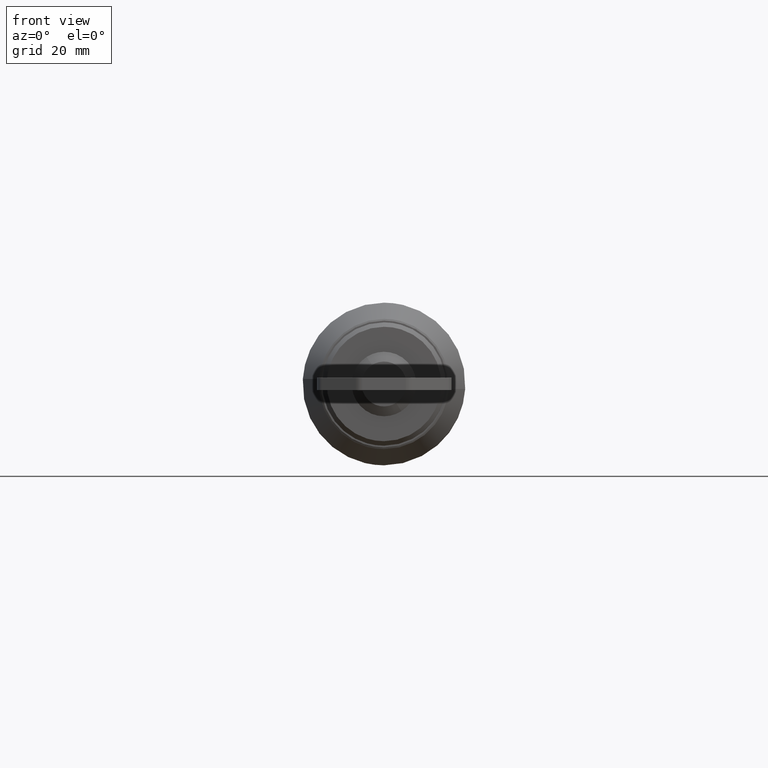
[diagram: clean part render]
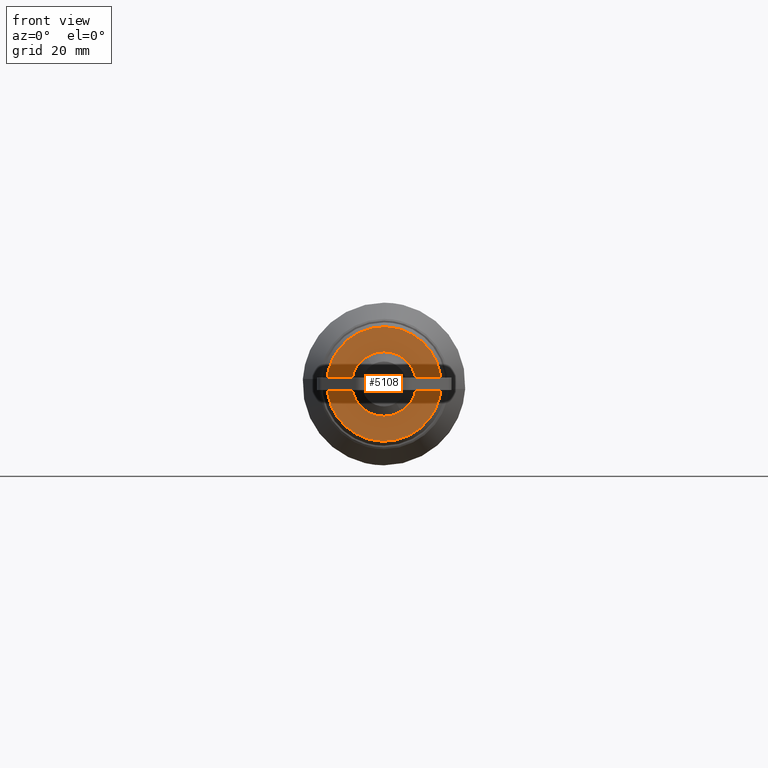
[diagram: same view with one face highlighted and labeled with its STEP entity id]
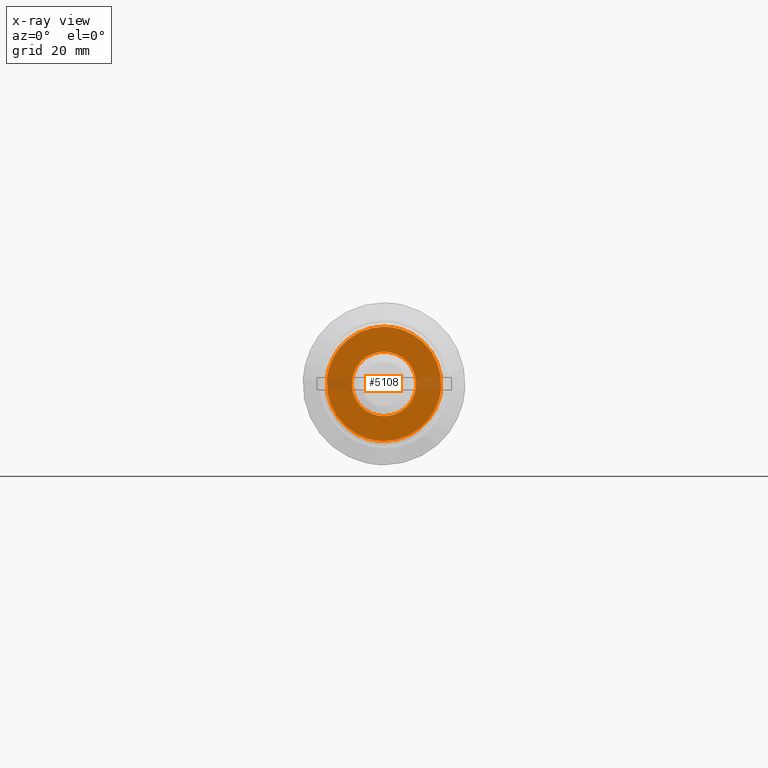
[diagram: x-ray of the same camera — body ghosted, the highlighted face saturated]
A machine part, front view. The second image highlights one B-rep face of the part: STEP entity #5108.
The next image is the same camera in x-ray: the body ghosted, the highlighted face saturated — about 9% of this face is hidden behind the body in this view.
In plain terms, the highlighted face is a freeform B-spline surface patch.
Its self-contained STEP definition (entity closure, byte-faithful):
#4920=CARTESIAN_POINT('',(-10.168556804114660,-5.899999999883600,0.800282777313632));
#4921=VERTEX_POINT('',#4920);
#4927=CARTESIAN_POINT('',(-3.612589E-016,-5.900000000000000,10.199999999990039));
#4928=VERTEX_POINT('',#4927);
#4929=CARTESIAN_POINT('',(-3.612589E-016,-5.900000000000000,10.199999999990039));
#4930=CARTESIAN_POINT('',(-9.428783014142846,-5.899999999941799,10.199999999994608));
#4931=CARTESIAN_POINT('',(-10.168556804114655,-5.899999999883600,0.800282777313632));
#4939=(BOUNDED_CURVE()B_SPLINE_CURVE(2,(#4929,#4930,#4931),.UNSPECIFIED.,.F.,.U.)B_SPLINE_CURVE_WITH_KNOTS((3,3),(0.0,0.236331300617910),.UNSPECIFIED.)CURVE()GEOMETRIC_REPRESENTATION_ITEM()RATIONAL_B_SPLINE_CURVE((1.0,0.723120658622602,0.969723356140811))REPRESENTATION_ITEM(''));
#4940=EDGE_CURVE('',#4928,#4921,#4939,.T.);
#4942=CARTESIAN_POINT('',(10.168556804114660,-5.899999999883602,-0.800282777313632));
#4943=VERTEX_POINT('',#4942);
#4944=CARTESIAN_POINT('',(10.168556804114658,-5.899999999883603,-0.800282777313632));
#4945=CARTESIAN_POINT('',(10.200000000103973,-5.899999999885715,-0.400759091929481));
#4946=CARTESIAN_POINT('',(10.200000000101690,-5.899999999888001,-8.786367E-012));
#4947=CARTESIAN_POINT('',(10.200000000043673,-5.899999999946202,10.199999999985819));
#4948=CARTESIAN_POINT('',(-3.612589E-016,-5.900000000000000,10.199999999990039));
#4956=(BOUNDED_CURVE()B_SPLINE_CURVE(2,(#4944,#4945,#4946,#4947,#4948),.UNSPECIFIED.,.F.,.U.)B_SPLINE_CURVE_WITH_KNOTS((3,2,3),(0.736331300617910,0.750000000000000,1.0),.UNSPECIFIED.)CURVE()GEOMETRIC_REPRESENTATION_ITEM()RATIONAL_B_SPLINE_CURVE((0.969723356140811,0.983986122563945,1.0,0.707106781186547,1.0))REPRESENTATION_ITEM(''));
#4957=EDGE_CURVE('',#4943,#4928,#4956,.T.);
#4993=CARTESIAN_POINT('',(-3.612589E-016,-5.900000000000000,-10.199999999990039));
#4994=VERTEX_POINT('',#4993);
#4995=CARTESIAN_POINT('',(-3.612589E-016,-5.900000000000000,-10.199999999990039));
#4996=CARTESIAN_POINT('',(9.428783014142848,-5.899999999941800,-10.199999999994606));
#4997=CARTESIAN_POINT('',(10.168556804114658,-5.899999999883603,-0.800282777313632));
#5005=(BOUNDED_CURVE()B_SPLINE_CURVE(2,(#4995,#4996,#4997),.UNSPECIFIED.,.F.,.U.)B_SPLINE_CURVE_WITH_KNOTS((3,3),(0.500000000000000,0.736331300617910),.UNSPECIFIED.)CURVE()GEOMETRIC_REPRESENTATION_ITEM()RATIONAL_B_SPLINE_CURVE((1.0,0.723120658622602,0.969723356140811))REPRESENTATION_ITEM(''));
#5006=EDGE_CURVE('',#4994,#4943,#5005,.T.);
#5008=CARTESIAN_POINT('',(-10.168556804114655,-5.899999999883600,0.800282777313632));
#5009=CARTESIAN_POINT('',(-10.200000000103973,-5.899999999885713,0.400759091929482));
#5010=CARTESIAN_POINT('',(-10.200000000101690,-5.899999999887999,8.786901E-012));
#5011=CARTESIAN_POINT('',(-10.200000000043671,-5.899999999946199,-10.199999999985819));
#5012=CARTESIAN_POINT('',(-3.612589E-016,-5.900000000000000,-10.199999999990039));
#5020=(BOUNDED_CURVE()B_SPLINE_CURVE(2,(#5008,#5009,#5010,#5011,#5012),.UNSPECIFIED.,.F.,.U.)B_SPLINE_CURVE_WITH_KNOTS((3,2,3),(0.236331300617910,0.250000000000000,0.500000000000000),.UNSPECIFIED.)CURVE()GEOMETRIC_REPRESENTATION_ITEM()RATIONAL_B_SPLINE_CURVE((0.969723356140811,0.983986122563945,1.0,0.707106781186547,1.0))REPRESENTATION_ITEM(''));
#5021=EDGE_CURVE('',#4921,#4994,#5020,.T.);
#5027=CARTESIAN_POINT('',(11.215866669303230,-5.900000000000000,-11.218979960449889));
#5028=CARTESIAN_POINT('',(11.215866669303230,-5.900000000000000,11.218980507620531));
#5029=CARTESIAN_POINT('',(-11.215867034083651,-5.899999999999998,-11.218979960449889));
#5030=CARTESIAN_POINT('',(-11.215867034083651,-5.899999999999998,11.218980507620531));
#5031=B_SPLINE_SURFACE_WITH_KNOTS('',1,1,((#5027,#5029),(#5028,#5030)),.UNSPECIFIED.,.F.,.F.,.U.,(2,2),(2,2),(0.0,22.437960468070411),(0.0,22.431733703386879),.UNSPECIFIED.);
#5032=ORIENTED_EDGE('',*,*,#4940,.T.);
#5033=ORIENTED_EDGE('',*,*,#5021,.T.);
#5034=ORIENTED_EDGE('',*,*,#5006,.T.);
#5035=ORIENTED_EDGE('',*,*,#4957,.T.);
#5036=EDGE_LOOP('',(#5032,#5033,#5034,#5035));
#5037=FACE_OUTER_BOUND('',#5036,.T.);
#5038=CARTESIAN_POINT('',(-3.612589E-016,-5.900000000000000,-5.749999999989910));
#5039=VERTEX_POINT('',#5038);
#5040=CARTESIAN_POINT('',(3.089472749283113,-5.899999999953710,-4.849500812687071));
#5041=VERTEX_POINT('',#5040);
#5042=CARTESIAN_POINT('',(-3.612589E-016,-5.900000000000000,-5.749999999989910));
#5043=CARTESIAN_POINT('',(1.675972163443335,-5.899999999976855,-5.750000000024071));
#5044=CARTESIAN_POINT('',(3.089472749283113,-5.899999999953710,-4.849500812687071));
#5052=(BOUNDED_CURVE()B_SPLINE_CURVE(2,(#5042,#5043,#5044),.UNSPECIFIED.,.F.,.U.)B_SPLINE_CURVE_WITH_KNOTS((3,3),(0.500000000000000,0.591950076753496),.UNSPECIFIED.)CURVE()GEOMETRIC_REPRESENTATION_ITEM()RATIONAL_B_SPLINE_CURVE((1.0,0.892273784198099,0.863791038886985))REPRESENTATION_ITEM(''));
#5053=EDGE_CURVE('',#5039,#5041,#5052,.T.);
#5054=ORIENTED_EDGE('',*,*,#5053,.F.);
#5055=CARTESIAN_POINT('',(-3.089472749283113,-5.899999999953710,4.849500812687071));
#5056=VERTEX_POINT('',#5055);
#5057=CARTESIAN_POINT('',(-3.089472749283113,-5.899999999953710,4.849500812687071));
#5058=CARTESIAN_POINT('',(-3.544774195030398,-5.899999999954344,4.559702941307819));
#5059=CARTESIAN_POINT('',(-4.254285821082802,-5.899999999955961,3.951788660787681));
#5060=CARTESIAN_POINT('',(-5.088966483548384,-5.899999999959671,2.786262312073792));
#5061=CARTESIAN_POINT('',(-5.636178031062038,-5.899999999964383,1.455901757056239));
#5062=CARTESIAN_POINT('',(-5.801952560189206,-5.899999999969793,0.064246105758383));
#5063=CARTESIAN_POINT('',(-5.649591850871973,-5.899999999975382,-1.281897896209137));
#5064=CARTESIAN_POINT('',(-5.303636478584418,-5.899999999979944,-2.312591895112305));
#5065=CARTESIAN_POINT('',(-4.751702156714156,-5.899999999984515,-3.287997688164240));
#5066=CARTESIAN_POINT('',(-4.162791816073396,-5.899999999988102,-4.007577582733013));
#5067=CARTESIAN_POINT('',(-3.374217515900804,-5.899999999991776,-4.690861187319584));
#5068=CARTESIAN_POINT('',(-2.544949303800048,-5.899999999994770,-5.191385359255149));
#5069=CARTESIAN_POINT('',(-1.387590844823783,-5.899999999997856,-5.629673022660573));
#5070=CARTESIAN_POINT('',(-0.539674681721745,-5.899999999999441,-5.750218964959137));
#5071=CARTESIAN_POINT('',(-3.612589E-016,-5.900000000000000,-5.749999999989910));
#5072=B_SPLINE_CURVE_WITH_KNOTS('',3,(#5057,#5058,#5059,#5060,#5061,#5062,#5063,#5064,#5065,#5066,#5067,#5068,#5069,#5070,#5071),.UNSPECIFIED.,.F.,.U.,(4,1,1,1,1,1,1,1,1,1,1,1,4),(0.000000394767103,1.619065652617310,2.775537172010054,4.279045537108468,5.897938993341347,6.938726122178580,8.326559755288903,9.136073952359823,10.292592377154641,11.102124199907321,12.258602182609209,13.183864450499710,14.802823164937839),.UNSPECIFIED.);
#5073=EDGE_CURVE('',#5056,#5039,#5072,.T.);
#5074=ORIENTED_EDGE('',*,*,#5073,.F.);
#5075=CARTESIAN_POINT('',(-3.612589E-016,-5.900000000000000,5.749999999989910));
#5076=VERTEX_POINT('',#5075);
#5077=CARTESIAN_POINT('',(-3.612589E-016,-5.900000000000000,5.749999999989910));
#5078=CARTESIAN_POINT('',(-1.675972163443335,-5.899999999976855,5.750000000024071));
#5079=CARTESIAN_POINT('',(-3.089472749283114,-5.899999999953710,4.849500812687071));
#5087=(BOUNDED_CURVE()B_SPLINE_CURVE(2,(#5077,#5078,#5079),.UNSPECIFIED.,.F.,.U.)B_SPLINE_CURVE_WITH_KNOTS((3,3),(0.0,0.091950076753496),.UNSPECIFIED.)CURVE()GEOMETRIC_REPRESENTATION_ITEM()RATIONAL_B_SPLINE_CURVE((1.0,0.892273784198099,0.863791038886985))REPRESENTATION_ITEM(''));
#5088=EDGE_CURVE('',#5076,#5056,#5087,.T.);
#5089=ORIENTED_EDGE('',*,*,#5088,.F.);
#5090=CARTESIAN_POINT('',(3.089472749283113,-5.899999999953710,-4.849500812687071));
#5091=CARTESIAN_POINT('',(3.609901915044586,-5.899999999954442,-4.518380551684293));
#5092=CARTESIAN_POINT('',(4.513027043505347,-5.899999999956579,-3.712382592417901));
#5093=CARTESIAN_POINT('',(5.421460322201063,-5.899999999961849,-2.165828692867051));
#5094=CARTESIAN_POINT('',(5.793270789553894,-5.899999999967636,-0.571127558818437));
#5095=CARTESIAN_POINT('',(5.732434836178696,-5.899999999973820,0.864244043758148));
#5096=CARTESIAN_POINT('',(5.359204365006586,-5.899999999979424,2.248344122638519));
#5097=CARTESIAN_POINT('',(4.725675149058484,-5.899999999984929,3.368141531777175));
#5098=CARTESIAN_POINT('',(3.832807219856528,-5.899999999989846,4.333540634111420));
#5099=CARTESIAN_POINT('',(2.801386354801172,-5.899999999993999,5.091498577570985));
#5100=CARTESIAN_POINT('',(1.464776721146856,-5.899999999997853,5.628490510835530));
#5101=CARTESIAN_POINT('',(0.462547839960231,-5.899999999999423,5.750093961261714));
#5102=CARTESIAN_POINT('',(-3.612589E-016,-5.900000000000000,5.749999999989910));
#5103=B_SPLINE_CURVE_WITH_KNOTS('',3,(#5090,#5091,#5092,#5093,#5094,#5095,#5096,#5097,#5098,#5099,#5100,#5101,#5102),.UNSPECIFIED.,.F.,.U.,(4,1,1,1,1,1,1,1,1,1,4),(0.000000394767047,1.850378660876219,3.585143539243383,5.319899993004951,6.707392927510218,7.863918417846588,9.598683867597323,10.523887294443060,11.796044762620999,13.415165836626789,14.802823164937820),.UNSPECIFIED.);
#5104=EDGE_CURVE('',#5041,#5076,#5103,.T.);
#5105=ORIENTED_EDGE('',*,*,#5104,.F.);
#5106=EDGE_LOOP('',(#5054,#5074,#5089,#5105));
#5107=FACE_BOUND('',#5106,.T.);
#5108=ADVANCED_FACE('',(#5037,#5107),#5031,.T.);